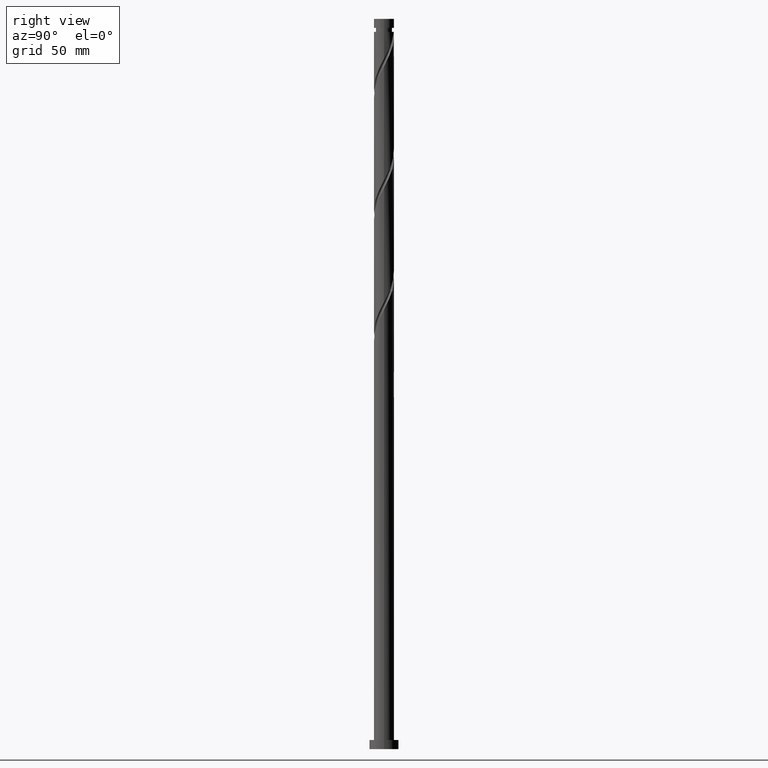
[diagram: clean part render]
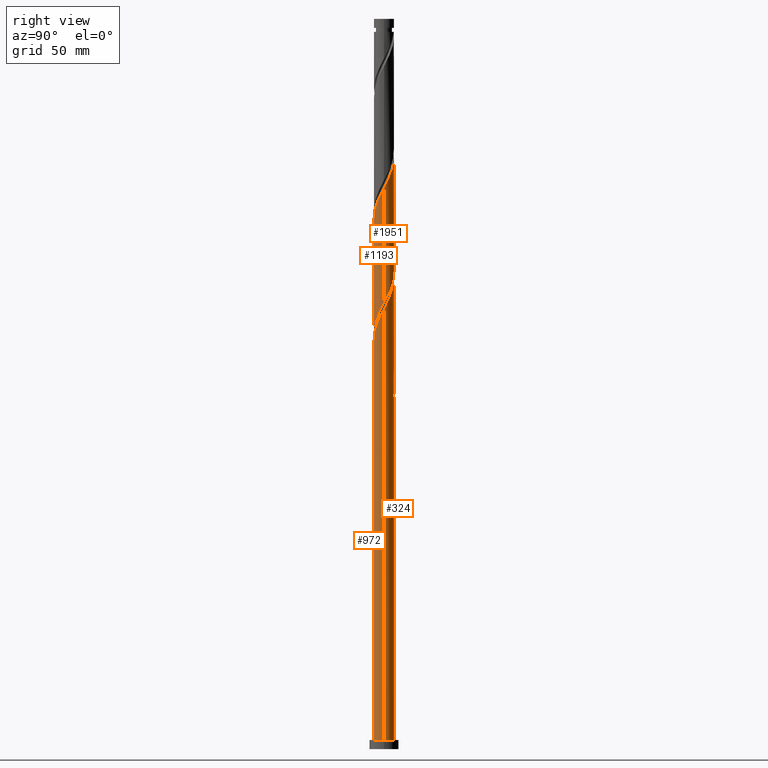
[diagram: same view with one multi-face feature highlighted, each face labeled with its STEP entity id]
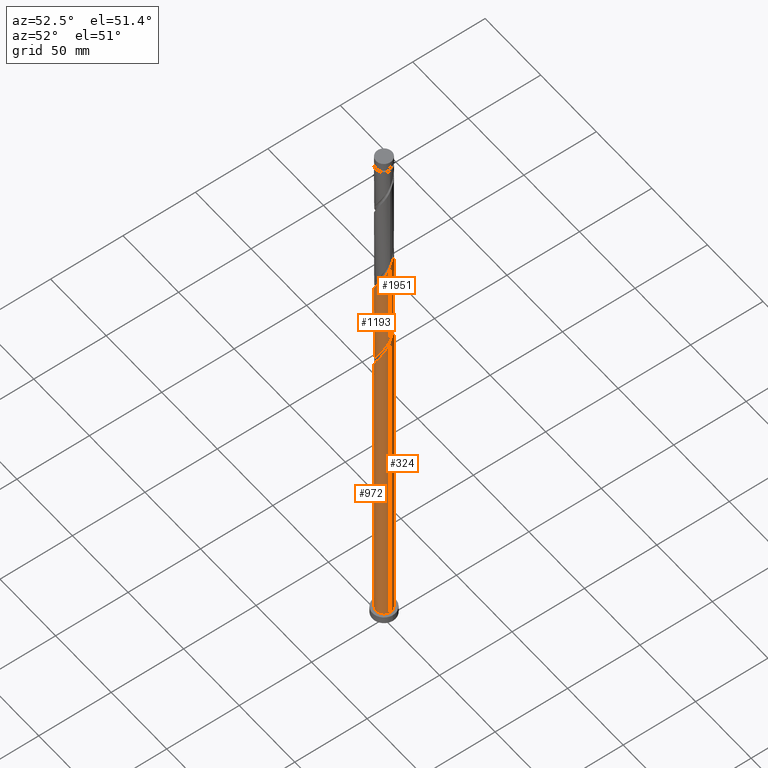
[diagram: same view with one multi-face feature highlighted, each face labeled with its STEP entity id]
A machine part, right view. The highlighted faces form ONE feature: a constant-radius fillet chain: 4 tangent blend faces with common blend radius 5.5 mm. The faces share edges in the B-rep.
A second angle (auxiliary view) of the same feature is appended — it is thin or edge-on in the first view.
Their STEP definitions:
[1] entity #1951 (Cylinder):
#13 = VECTOR ( 'NONE', #247, 1000.000000000000000 ) ;
#27 = CARTESIAN_POINT ( 'NONE',  ( -5.500000000000007994, 6.397921800044681190E-15, 340.7215994895588551 ) ) ;
#101 = CARTESIAN_POINT ( 'NONE',  ( 4.053620430246145823, 3.717278763758650406, 252.8470427330803432 ) ) ;
#104 = CARTESIAN_POINT ( 'NONE',  ( -1.094486180817285659, 5.390000000000008562, 326.1803760664137144 ) ) ;
#115 = CARTESIAN_POINT ( 'NONE',  ( -1.660998008899283507, 5.274964866956355358, 327.2914871775246866 ) ) ;
#123 = CARTESIAN_POINT ( 'NONE',  ( -1.192447627240333041, 5.369177651772091941, 263.9581538441914859 ) ) ;
#133 = CARTESIAN_POINT ( 'NONE',  ( -4.737904811144821871, 2.793252226443368791, 335.0692649553025717 ) ) ;
#149 = CARTESIAN_POINT ( 'NONE',  ( -5.500000000000000888, -7.623691864539277123E-15, 278.3058193099351456 ) ) ;
#178 = DIRECTION ( 'NONE',  ( -0.000000000000000000, -0.000000000000000000, -1.000000000000000000 ) ) ;
#232 = DIRECTION ( 'NONE',  ( -0.000000000000000000, -0.000000000000000000, -1.000000000000000000 ) ) ;
#239 = VERTEX_POINT ( 'NONE', #373 ) ;
#247 = DIRECTION ( 'NONE',  ( -0.000000000000000000, -0.000000000000000000, -1.000000000000000000 ) ) ;
#254 = CARTESIAN_POINT ( 'NONE',  ( 1.756770938335405763, 5.243846355816634386, 320.6248205108581715 ) ) ;
#264 = CARTESIAN_POINT ( 'NONE',  ( 5.246068057486485969, 1.651898888013441535, 310.6248205108581715 ) ) ;
#266 = ORIENTED_EDGE ( 'NONE', *, *, #1725, .F. ) ;
#282 = CARTESIAN_POINT ( 'NONE',  ( -4.503513097574002089, 3.209756768537233018, 271.7359316219693142 ) ) ;
#283 = CARTESIAN_POINT ( 'NONE',  ( 3.737754574404964725, 4.075948904820327456, 316.1803760664137144 ) ) ;
#329 = CARTESIAN_POINT ( 'NONE',  ( 5.500000000000000000, 5.202048566391506910E-15, 244.9724859766018881 ) ) ;
#343 = CARTESIAN_POINT ( 'NONE',  ( -5.031487450309301224, 2.295278364506422975, 336.1803760664136007 ) ) ;
#373 = CARTESIAN_POINT ( 'NONE',  ( 5.500000000000009770, 3.468032377594313485E-15, 307.3882661562255407 ) ) ;
#386 = VERTEX_POINT ( 'NONE', #1458 ) ;
#411 = CARTESIAN_POINT ( 'NONE',  ( -4.120633835989480964, 3.642852836678778239, 270.6248205108581146 ) ) ;
#414 = CARTESIAN_POINT ( 'NONE',  ( 0.000000000000000000, 0.000000000000000000, 400.0000000000000000 ) ) ;
#443 = CARTESIAN_POINT ( 'NONE',  ( -0.05007498170498810713, 5.499772040385605187, 261.7359316219692573 ) ) ;
#444 = CARTESIAN_POINT ( 'NONE',  ( -3.662918688511957122, 4.143331439137003080, 331.7359316219692573 ) ) ;
#459 =( BOUNDED_CURVE ( )  B_SPLINE_CURVE ( 2, ( #1829, #1032, #1842, #1958, #264, #1810, #586, #1052, #1672, #283, #903, #1490, #1075, #254, #873, #1482, #1042, #895, #104, #115, #1358, #596, #1205, #444, #914, #1519, #133, #343, #1866, #937, #2008, #1886, #27 ),
 .UNSPECIFIED., .F., .T. ) 
 B_SPLINE_CURVE_WITH_KNOTS ( ( 3, 2, 2, 2, 2, 2, 2, 2, 2, 2, 2, 2, 2, 2, 2, 2, 3 ),
 ( 0.4295286012773114614, 0.4333333333333333481, 0.4416666666666666519, 0.4499999999999999556, 0.4583333333333333703, 0.4666666666666666741, 0.4749999999999999778, 0.4833333333333332815, 0.4916666666666666963, 0.5000000000000000000, 0.5083333333333333037, 0.5166666666666666075, 0.5250000000000000222, 0.5333333333333333259, 0.5416666666666667407, 0.5500000000000000444, 0.5545286012773112949 ),
 .UNSPECIFIED. ) 
 CURVE ( )  GEOMETRIC_REPRESENTATION_ITEM ( )  RATIONAL_B_SPLINE_CURVE ( ( 0.9066196499552308108, 0.9068171577856434240, 0.9090909090909424783, 0.9041108139711906411, 0.9090909090909424783, 0.9041108139711906411, 0.9090909090909424783, 0.9041108139711906411, 0.9090909090909424783, 0.9041108139711906411, 0.9090909090909424783, 0.9041108139711906411, 0.9090909090909424783, 0.9041108139711906411, 0.9090909090909424783, 0.9041108139711906411, 0.9090909090909424783, 0.9041108139711906411, 0.9090909090909424783, 0.9041108139711906411, 0.9090909090909424783, 0.9041108139711906411, 0.9090909090909424783, 0.9041108139711906411, 0.9090909090909424783, 0.9041108139711906411, 0.9090909090909424783, 0.9041108139711906411, 0.9090909090909424783, 0.9041108139711906411, 0.9090909090909424783, 0.9063845652764896954, 0.9066196499552308108 ) ) 
 REPRESENTATION_ITEM ( '' )  );
#513 = EDGE_CURVE ( 'NONE', #386, #1323, #792, .T. ) ;
#574 = CARTESIAN_POINT ( 'NONE',  ( 4.737904811144816541, 2.793252226443360797, 250.6248205108581146 ) ) ;
#586 = CARTESIAN_POINT ( 'NONE',  ( 4.787979792849812455, 2.706519813942244390, 312.8470427330802863 ) ) ;
#595 = CARTESIAN_POINT ( 'NONE',  ( -3.737754574404959396, 4.075948904820323904, 269.5137093997470288 ) ) ;
#596 = CARTESIAN_POINT ( 'NONE',  ( -2.721428081721636083, 4.814353324093296749, 329.5137093997470288 ) ) ;
#602 = CARTESIAN_POINT ( 'NONE',  ( 5.215120016806767289, 1.747147163321217445, 248.4025982886358861 ) ) ;
#685 = CARTESIAN_POINT ( 'NONE',  ( 2.721428081721633863, 4.814353324093288755, 256.1803760664137712 ) ) ;
#688 = EDGE_CURVE ( 'NONE', #1323, #699, #1566, .T. ) ;
#699 = VERTEX_POINT ( 'NONE', #329 ) ;
#726 = CARTESIAN_POINT ( 'NONE',  ( -2.282704589466713951, 5.003924435603280152, 266.1803760664136007 ) ) ;
#757 = CARTESIAN_POINT ( 'NONE',  ( -0.6281243161452666479, 5.494508947727561043, 262.8470427330804569 ) ) ;
#781 = CARTESIAN_POINT ( 'NONE',  ( 5.500000000000000000, 5.202048566391506910E-15, 244.9724859766018881 ) ) ;
#792 = LINE ( 'NONE', #1559, #1085 ) ;
#801 = CARTESIAN_POINT ( 'NONE',  ( 5.398752583304238684, 1.199015962136021907, 247.2914871775248571 ) ) ;
#846 = CARTESIAN_POINT ( 'NONE',  ( 3.192173385116795714, 4.478842381615138812, 255.0692649553025433 ) ) ;
#873 = CARTESIAN_POINT ( 'NONE',  ( 1.192447627240339925, 5.369177651772102600, 321.7359316219692573 ) ) ;
#894 = CARTESIAN_POINT ( 'NONE',  ( -5.419689626847354447, 1.100514916679633748, 276.1803760664136007 ) ) ;
#895 = CARTESIAN_POINT ( 'NONE',  ( -0.5279743527352852572, 5.505035133043659989, 325.0692649553026286 ) ) ;
#903 = CARTESIAN_POINT ( 'NONE',  ( 3.273196407501500982, 4.419975710105129352, 317.2914871775248002 ) ) ;
#914 = CARTESIAN_POINT ( 'NONE',  ( -4.053620430246150264, 3.717278763758658400, 332.8470427330802863 ) ) ;
#937 = CARTESIAN_POINT ( 'NONE',  ( -5.398752583304249342, 1.199015962136027902, 338.4025982886358861 ) ) ;
#998 = CARTESIAN_POINT ( 'NONE',  ( 1.094486180817287657, 5.390000000000000568, 259.5137093997470288 ) ) ;
#1031 = CARTESIAN_POINT ( 'NONE',  ( -2.808638240598027913, 4.764002515389932135, 267.2914871775248571 ) ) ;
#1032 = CARTESIAN_POINT ( 'NONE',  ( 5.500000000000008882, 0.2631419960771188560, 307.8968146817895786 ) ) ;
#1038 = CARTESIAN_POINT ( 'NONE',  ( 5.031487450309294118, 2.295278364506417645, 249.5137093997470004 ) ) ;
#1042 = CARTESIAN_POINT ( 'NONE',  ( 0.05007498170499220108, 5.499772040385614957, 323.9581538441915427 ) ) ;
#1051 = CARTESIAN_POINT ( 'NONE',  ( -4.787979792849804461, 2.706519813942241282, 272.8470427330804000 ) ) ;
#1052 = CARTESIAN_POINT ( 'NONE',  ( 4.503513097574011859, 3.209756768537233906, 313.9581538441914290 ) ) ;
#1062 = CARTESIAN_POINT ( 'NONE',  ( -5.474877974583507445, 0.5250820539881385640, 277.2914871775248571 ) ) ;
#1075 = CARTESIAN_POINT ( 'NONE',  ( 2.282704589466719280, 5.003924435603286369, 319.5137093997470288 ) ) ;
#1085 = VECTOR ( 'NONE', #178, 1000.000000000000000 ) ;
#1088 = AXIS2_PLACEMENT_3D ( 'NONE', #414, #232, #1453 ) ;
#1119 = LINE ( 'NONE', #1961, #13 ) ;
#1127 = CARTESIAN_POINT ( 'NONE',  ( 2.191213045310460128, 5.044659095524817616, 257.2914871775248002 ) ) ;
#1196 = CARTESIAN_POINT ( 'NONE',  ( -5.500000000000002665, 0.2631419960771197442, 277.7972707843711646 ) ) ;
#1205 = CARTESIAN_POINT ( 'NONE',  ( -3.192173385116796602, 4.478842381615148582, 330.6248205108580578 ) ) ;
#1222 = CARTESIAN_POINT ( 'NONE',  ( 5.500000000000001776, 0.3133555559553803382, 245.5780772859864669 ) ) ;
#1240 = ORIENTED_EDGE ( 'NONE', *, *, #1913, .T. ) ;
#1323 = VERTEX_POINT ( 'NONE', #149 ) ;
#1348 = CARTESIAN_POINT ( 'NONE',  ( -5.500000000000000888, -7.623691864539277123E-15, 278.3058193099351456 ) ) ;
#1357 = CARTESIAN_POINT ( 'NONE',  ( -3.273196407501492100, 4.419975710105126687, 268.4025982886358861 ) ) ;
#1358 = CARTESIAN_POINT ( 'NONE',  ( -2.191213045310459240, 5.044659095524825609, 328.4025982886358292 ) ) ;
#1370 = EDGE_LOOP ( 'NONE', ( #266, #1240, #1955, #2006 ) ) ;
#1453 = DIRECTION ( 'NONE',  ( -1.000000000000000000, 0.000000000000000000, 0.000000000000000000 ) ) ;
#1458 = CARTESIAN_POINT ( 'NONE',  ( -5.500000000000007994, 6.397921800044680401E-15, 340.7215994895588551 ) ) ;
#1478 = CARTESIAN_POINT ( 'NONE',  ( 4.444322171980340741, 3.291226088380304393, 251.7359316219692857 ) ) ;
#1482 = CARTESIAN_POINT ( 'NONE',  ( 0.6281243161452697565, 5.494508947727569037, 322.8470427330804569 ) ) ;
#1490 = CARTESIAN_POINT ( 'NONE',  ( 2.808638240598036351, 4.764002515389936576, 318.4025982886359998 ) ) ;
#1510 = CARTESIAN_POINT ( 'NONE',  ( -1.756770938335399102, 5.243846355816629945, 265.0692649553025717 ) ) ;
#1519 = CARTESIAN_POINT ( 'NONE',  ( -4.444322171980342517, 3.291226088380315051, 333.9581538441915995 ) ) ;
#1559 = CARTESIAN_POINT ( 'NONE',  ( -5.500000000000000000, 0.000000000000000000, 400.0000000000000000 ) ) ;
#1566 =( BOUNDED_CURVE ( )  B_SPLINE_CURVE ( 2, ( #1348, #1196, #1062, #894, #1641, #1671, #1051, #282, #411, #595, #1357, #1031, #726, #1510, #123, #757, #443, #1596, #998, #1754, #1127, #685, #846, #1813, #101, #1478, #574, #1038, #602, #801, #1700, #1222, #781 ),
 .UNSPECIFIED., .F., .T. ) 
 B_SPLINE_CURVE_WITH_KNOTS ( ( 3, 2, 2, 2, 2, 2, 2, 2, 2, 2, 2, 2, 2, 2, 2, 2, 3 ),
 ( 0.6795286012773114059, 0.6833333333333333481, 0.6916666666666666519, 0.6999999999999999556, 0.7083333333333333703, 0.7166666666666666741, 0.7249999999999999778, 0.7333333333333332815, 0.7416666666666666963, 0.7500000000000000000, 0.7583333333333333037, 0.7666666666666667185, 0.7750000000000000222, 0.7833333333333333259, 0.7916666666666666297, 0.8000000000000000444, 0.8045286012773114059 ),
 .UNSPECIFIED. ) 
 CURVE ( )  GEOMETRIC_REPRESENTATION_ITEM ( )  RATIONAL_B_SPLINE_CURVE ( ( 0.9066196499552243715, 0.9068171577856372068, 0.9090909090909361501, 0.9041108139711843128, 0.9090909090909361501, 0.9041108139711843128, 0.9090909090909361501, 0.9041108139711843128, 0.9090909090909361501, 0.9041108139711843128, 0.9090909090909361501, 0.9041108139711843128, 0.9090909090909361501, 0.9041108139711843128, 0.9090909090909361501, 0.9041108139711843128, 0.9090909090909361501, 0.9041108139711843128, 0.9090909090909361501, 0.9041108139711843128, 0.9090909090909361501, 0.9041108139711843128, 0.9090909090909361501, 0.9041108139711843128, 0.9090909090909361501, 0.9041108139711843128, 0.9090909090909361501, 0.9041108139711843128, 0.9090909090909361501, 0.9041108139711843128, 0.9090909090909361501, 0.9063845652764832561, 0.9066196499552243715 ) ) 
 REPRESENTATION_ITEM ( '' )  );
#1596 = CARTESIAN_POINT ( 'NONE',  ( 0.5279743527352899202, 5.505035133043651996, 260.6248205108582283 ) ) ;
#1634 = CYLINDRICAL_SURFACE ( 'NONE', #1088, 5.500000000000000000 ) ;
#1641 = CARTESIAN_POINT ( 'NONE',  ( -5.246068057486477976, 1.651898888013442424, 275.0692649553025717 ) ) ;
#1671 = CARTESIAN_POINT ( 'NONE',  ( -5.072446488125604169, 2.203282859347252209, 273.9581538441915995 ) ) ;
#1672 = CARTESIAN_POINT ( 'NONE',  ( 4.120633835989489846, 3.642852836678779127, 315.0692649553025717 ) ) ;
#1700 = CARTESIAN_POINT ( 'NONE',  ( 5.464409452811949564, 0.6246833854196899294, 246.1803760664136860 ) ) ;
#1725 = EDGE_CURVE ( 'NONE', #239, #386, #459, .T. ) ;
#1735 = FACE_OUTER_BOUND ( 'NONE', #1370, .T. ) ;
#1754 = CARTESIAN_POINT ( 'NONE',  ( 1.660998008899287059, 5.274964866956348253, 258.4025982886359429 ) ) ;
#1810 = CARTESIAN_POINT ( 'NONE',  ( 5.072446488125613939, 2.203282859347249545, 311.7359316219692005 ) ) ;
#1813 = CARTESIAN_POINT ( 'NONE',  ( 3.662918688511955789, 4.143331439136995087, 253.9581538441915143 ) ) ;
#1829 = CARTESIAN_POINT ( 'NONE',  ( 5.500000000000010658, 3.468032377594313485E-15, 307.3882661562255976 ) ) ;
#1842 = CARTESIAN_POINT ( 'NONE',  ( 5.474877974583515439, 0.5250820539881335680, 308.4025982886359429 ) ) ;
#1866 = CARTESIAN_POINT ( 'NONE',  ( -5.215120016806774395, 1.747147163321225660, 337.2914871775248002 ) ) ;
#1886 = CARTESIAN_POINT ( 'NONE',  ( -5.500000000000005329, 0.3133555559553924397, 340.1160081801743331 ) ) ;
#1913 = EDGE_CURVE ( 'NONE', #239, #699, #1119, .T. ) ;
#1951 = ADVANCED_FACE ( 'NONE', ( #1735 ), #1634, .T. ) ;
#1955 = ORIENTED_EDGE ( 'NONE', *, *, #688, .F. ) ;
#1958 = CARTESIAN_POINT ( 'NONE',  ( 5.419689626847361552, 1.100514916679632860, 309.5137093997470856 ) ) ;
#1961 = CARTESIAN_POINT ( 'NONE',  ( 5.500000000000000000, 6.735557395310441037E-16, 400.0000000000000000 ) ) ;
#2006 = ORIENTED_EDGE ( 'NONE', *, *, #513, .F. ) ;
#2008 = CARTESIAN_POINT ( 'NONE',  ( -5.464409452811957557, 0.6246833854196927049, 339.5137093997470856 ) ) ;
[2] entity #1193 (Cylinder):
#13 = VECTOR ( 'NONE', #247, 1000.000000000000000 ) ;
#22 = VERTEX_POINT ( 'NONE', #651 ) ;
#40 = ORIENTED_EDGE ( 'NONE', *, *, #1582, .F. ) ;
#49 = CARTESIAN_POINT ( 'NONE',  ( -1.756770938335404875, -5.243846355816634386, 287.2914871775249139 ) ) ;
#58 = CARTESIAN_POINT ( 'NONE',  ( 3.662918688511956677, -4.143331439137004857, 298.4025982886358292 ) ) ;
#87 = CARTESIAN_POINT ( 'NONE',  ( 5.215120016806774395, -1.747147163321227881, 303.9581538441914290 ) ) ;
#89 = CARTESIAN_POINT ( 'NONE',  ( 3.273196407501492100, -4.419975710105127575, 235.0692649553026286 ) ) ;
#124 = CARTESIAN_POINT ( 'NONE',  ( -5.500000000000000000, 0.000000000000000000, 400.0000000000000000 ) ) ;
#141 = CARTESIAN_POINT ( 'NONE',  ( 5.246068057486477976, -1.651898888013445976, 241.7359316219692289 ) ) ;
#212 = CARTESIAN_POINT ( 'NONE',  ( 3.192173385116794826, -4.478842381615150359, 297.2914871775247434 ) ) ;
#224 = CARTESIAN_POINT ( 'NONE',  ( -1.094486180817286769, -5.390000000000000568, 226.1803760664136576 ) ) ;
#230 = CARTESIAN_POINT ( 'NONE',  ( -1.192447627240337038, -5.369177651772103488, 288.4025982886357724 ) ) ;
#239 = VERTEX_POINT ( 'NONE', #373 ) ;
#242 = VERTEX_POINT ( 'NONE', #1741 ) ;
#247 = DIRECTION ( 'NONE',  ( -0.000000000000000000, -0.000000000000000000, -1.000000000000000000 ) ) ;
#256 = CARTESIAN_POINT ( 'NONE',  ( -3.662918688511955789, -4.143331439136995975, 220.6248205108581431 ) ) ;
#329 = CARTESIAN_POINT ( 'NONE',  ( 5.500000000000000000, 5.202048566391506910E-15, 244.9724859766018881 ) ) ;
#333 = EDGE_LOOP ( 'NONE', ( #464, #40, #474, #565 ) ) ;
#373 = CARTESIAN_POINT ( 'NONE',  ( 5.500000000000009770, 3.468032377594313485E-15, 307.3882661562255407 ) ) ;
#376 = CARTESIAN_POINT ( 'NONE',  ( -4.737904811144815653, -2.793252226443360797, 217.2914871775248002 ) ) ;
#384 = CARTESIAN_POINT ( 'NONE',  ( -5.215120016806765513, -1.747147163321219887, 215.0692649553025433 ) ) ;
#392 = CARTESIAN_POINT ( 'NONE',  ( 5.500000000000010658, 3.468032377594313485E-15, 307.3882661562255976 ) ) ;
#394 = CARTESIAN_POINT ( 'NONE',  ( -2.191213045310459240, -5.044659095524817616, 223.9581538441914290 ) ) ;
#406 = CARTESIAN_POINT ( 'NONE',  ( 1.192447627240330821, -5.369177651772093718, 230.6248205108581431 ) ) ;
#422 = LINE ( 'NONE', #124, #1241 ) ;
#464 = ORIENTED_EDGE ( 'NONE', *, *, #1913, .F. ) ;
#474 = ORIENTED_EDGE ( 'NONE', *, *, #1664, .T. ) ;
#503 = CARTESIAN_POINT ( 'NONE',  ( -5.031487450309294118, -2.295278364506418534, 216.1803760664136860 ) ) ;
#504 = AXIS2_PLACEMENT_3D ( 'NONE', #1018, #1627, #1302 ) ;
#520 = CARTESIAN_POINT ( 'NONE',  ( -5.500000000000007994, -0.2631419960771174682, 274.5634813484563210 ) ) ;
#529 = CARTESIAN_POINT ( 'NONE',  ( -5.419689626847361552, -1.100514916679633082, 276.1803760664136576 ) ) ;
#539 = CARTESIAN_POINT ( 'NONE',  ( -5.246068057486485969, -1.651898888013443312, 277.2914871775248571 ) ) ;
#541 = CARTESIAN_POINT ( 'NONE',  ( -2.721428081721632530, -4.814353324093288755, 222.8470427330804000 ) ) ;
#548 = CARTESIAN_POINT ( 'NONE',  ( 5.464409452811957557, -0.6246833854196932601, 306.1803760664137712 ) ) ;
#559 = CARTESIAN_POINT ( 'NONE',  ( 4.787979792849804461, -2.706519813942242170, 239.5137093997470004 ) ) ;
#565 = ORIENTED_EDGE ( 'NONE', *, *, #1852, .F. ) ;
#651 = CARTESIAN_POINT ( 'NONE',  ( -5.500000000000007994, -5.411326382280783221E-15, 274.0549328228922263 ) ) ;
#682 = CARTESIAN_POINT ( 'NONE',  ( 4.053620430246150264, -3.717278763758658844, 299.5137093997470856 ) ) ;
#697 = FACE_OUTER_BOUND ( 'NONE', #333, .T. ) ;
#699 = VERTEX_POINT ( 'NONE', #329 ) ;
#708 = CARTESIAN_POINT ( 'NONE',  ( 0.6281243161452659818, -5.494508947727561932, 229.5137093997470572 ) ) ;
#836 = CARTESIAN_POINT ( 'NONE',  ( -3.737754574404964725, -4.075948904820328345, 282.8470427330803432 ) ) ;
#853 = CARTESIAN_POINT ( 'NONE',  ( -0.6281243161452685353, -5.494508947727569037, 289.5137093997469719 ) ) ;
#984 = CARTESIAN_POINT ( 'NONE',  ( 0.5279743527352882548, -5.505035133043659989, 291.7359316219693142 ) ) ;
#997 = CARTESIAN_POINT ( 'NONE',  ( -4.053620430246145823, -3.717278763758650406, 219.5137093997470288 ) ) ;
#1005 =( BOUNDED_CURVE ( )  B_SPLINE_CURVE ( 2, ( #1255, #1071, #1678, #1524, #141, #1008, #559, #1181, #1942, #1475, #89, #1329, #1160, #1607, #406, #708, #1300, #1950, #224, #1168, #394, #541, #1319, #256, #997, #1644, #376, #503, #384, #1784, #1016, #1484, #1626 ),
 .UNSPECIFIED., .F., .T. ) 
 B_SPLINE_CURVE_WITH_KNOTS ( ( 3, 2, 2, 2, 2, 2, 2, 2, 2, 2, 2, 2, 2, 2, 2, 2, 3 ),
 ( 0.8045286012773114059, 0.8083333333333333481, 0.8166666666666666519, 0.8249999999999999556, 0.8333333333333333703, 0.8416666666666666741, 0.8499999999999999778, 0.8583333333333332815, 0.8666666666666666963, 0.8750000000000000000, 0.8833333333333333037, 0.8916666666666667185, 0.9000000000000000222, 0.9083333333333333259, 0.9166666666666666297, 0.9250000000000000444, 0.9295286012773115170 ),
 .UNSPECIFIED. ) 
 CURVE ( )  GEOMETRIC_REPRESENTATION_ITEM ( )  RATIONAL_B_SPLINE_CURVE ( ( 0.9066196499552243715, 0.9068171577856372068, 0.9090909090909361501, 0.9041108139711843128, 0.9090909090909361501, 0.9041108139711843128, 0.9090909090909361501, 0.9041108139711843128, 0.9090909090909361501, 0.9041108139711843128, 0.9090909090909361501, 0.9041108139711843128, 0.9090909090909361501, 0.9041108139711843128, 0.9090909090909361501, 0.9041108139711843128, 0.9090909090909361501, 0.9041108139711843128, 0.9090909090909361501, 0.9041108139711843128, 0.9090909090909361501, 0.9041108139711843128, 0.9090909090909361501, 0.9041108139711843128, 0.9090909090909361501, 0.9041108139711843128, 0.9090909090909361501, 0.9041108139711843128, 0.9090909090909361501, 0.9041108139711843128, 0.9090909090909361501, 0.9063845652764832561, 0.9066196499552243715 ) ) 
 REPRESENTATION_ITEM ( '' )  );
#1008 = CARTESIAN_POINT ( 'NONE',  ( 5.072446488125604169, -2.203282859347254874, 240.6248205108581431 ) ) ;
#1016 = CARTESIAN_POINT ( 'NONE',  ( -5.464409452811949564, -0.6246833854196904845, 212.8470427330803716 ) ) ;
#1018 = CARTESIAN_POINT ( 'NONE',  ( 0.000000000000000000, 0.000000000000000000, 400.0000000000000000 ) ) ;
#1024 = CARTESIAN_POINT ( 'NONE',  ( -5.500000000000007994, -5.411326382280783221E-15, 274.0549328228922263 ) ) ;
#1071 = CARTESIAN_POINT ( 'NONE',  ( 5.500000000000000888, -0.2631419960771224087, 244.4639374510378218 ) ) ;
#1083 =( BOUNDED_CURVE ( )  B_SPLINE_CURVE ( 2, ( #1024, #520, #1279, #529, #539, #1149, #1623, #1773, #1615, #836, #1436, #1166, #1948, #49, #230, #853, #1133, #984, #1309, #1593, #1443, #1158, #212, #58, #682, #1287, #1918, #1462, #87, #1141, #548, #1782, #392 ),
 .UNSPECIFIED., .F., .T. ) 
 B_SPLINE_CURVE_WITH_KNOTS ( ( 3, 2, 2, 2, 2, 2, 2, 2, 2, 2, 2, 2, 2, 2, 2, 2, 3 ),
 ( 0.3045286012773114059, 0.3083333333333333481, 0.3166666666666666519, 0.3249999999999999556, 0.3333333333333333703, 0.3416666666666666741, 0.3499999999999999778, 0.3583333333333332815, 0.3666666666666666963, 0.3750000000000000000, 0.3833333333333333037, 0.3916666666666667185, 0.4000000000000000222, 0.4083333333333333259, 0.4166666666666666297, 0.4250000000000000444, 0.4295286012773114614 ),
 .UNSPECIFIED. ) 
 CURVE ( )  GEOMETRIC_REPRESENTATION_ITEM ( )  RATIONAL_B_SPLINE_CURVE ( ( 0.9066196499552308108, 0.9068171577856434240, 0.9090909090909424783, 0.9041108139711906411, 0.9090909090909424783, 0.9041108139711906411, 0.9090909090909424783, 0.9041108139711906411, 0.9090909090909424783, 0.9041108139711906411, 0.9090909090909424783, 0.9041108139711906411, 0.9090909090909424783, 0.9041108139711906411, 0.9090909090909424783, 0.9041108139711906411, 0.9090909090909424783, 0.9041108139711906411, 0.9090909090909424783, 0.9041108139711906411, 0.9090909090909424783, 0.9041108139711906411, 0.9090909090909424783, 0.9041108139711906411, 0.9090909090909424783, 0.9041108139711906411, 0.9090909090909424783, 0.9041108139711906411, 0.9090909090909424783, 0.9041108139711906411, 0.9090909090909424783, 0.9063845652764896954, 0.9066196499552308108 ) ) 
 REPRESENTATION_ITEM ( '' )  );
#1119 = LINE ( 'NONE', #1961, #13 ) ;
#1133 = CARTESIAN_POINT ( 'NONE',  ( -0.05007498170499134760, -5.499772040385614957, 290.6248205108581146 ) ) ;
#1135 = CYLINDRICAL_SURFACE ( 'NONE', #504, 5.500000000000000000 ) ;
#1141 = CARTESIAN_POINT ( 'NONE',  ( 5.398752583304248454, -1.199015962136031455, 305.0692649553025717 ) ) ;
#1149 = CARTESIAN_POINT ( 'NONE',  ( -5.072446488125611275, -2.203282859347252653, 278.4025982886359429 ) ) ;
#1158 = CARTESIAN_POINT ( 'NONE',  ( 2.721428081721635195, -4.814353324093297637, 296.1803760664137144 ) ) ;
#1160 = CARTESIAN_POINT ( 'NONE',  ( 2.282704589466713507, -5.003924435603280152, 232.8470427330803432 ) ) ;
#1166 = CARTESIAN_POINT ( 'NONE',  ( -2.808638240598034130, -4.764002515389937464, 285.0692649553026286 ) ) ;
#1168 = CARTESIAN_POINT ( 'NONE',  ( -1.660998008899283063, -5.274964866956348253, 225.0692649553026286 ) ) ;
#1181 = CARTESIAN_POINT ( 'NONE',  ( 4.503513097574001200, -3.209756768537236127, 238.4025982886359145 ) ) ;
#1193 = ADVANCED_FACE ( 'NONE', ( #697 ), #1135, .T. ) ;
#1241 = VECTOR ( 'NONE', #1650, 1000.000000000000000 ) ;
#1255 = CARTESIAN_POINT ( 'NONE',  ( 5.500000000000000000, 5.202048566391506910E-15, 244.9724859766018881 ) ) ;
#1279 = CARTESIAN_POINT ( 'NONE',  ( -5.474877974583513662, -0.5250820539881364546, 275.0692649553026286 ) ) ;
#1287 = CARTESIAN_POINT ( 'NONE',  ( 4.444322171980340741, -3.291226088380315939, 300.6248205108581146 ) ) ;
#1300 = CARTESIAN_POINT ( 'NONE',  ( 0.05007498170498684426, -5.499772040385605187, 228.4025982886358861 ) ) ;
#1302 = DIRECTION ( 'NONE',  ( -1.000000000000000000, 0.000000000000000000, 0.000000000000000000 ) ) ;
#1309 = CARTESIAN_POINT ( 'NONE',  ( 1.094486180817286103, -5.390000000000008562, 292.8470427330803432 ) ) ;
#1319 = CARTESIAN_POINT ( 'NONE',  ( -3.192173385116793050, -4.478842381615140589, 221.7359316219692289 ) ) ;
#1329 = CARTESIAN_POINT ( 'NONE',  ( 2.808638240598027025, -4.764002515389932135, 233.9581538441915143 ) ) ;
#1436 = CARTESIAN_POINT ( 'NONE',  ( -3.273196407501500538, -4.419975710105131128, 283.9581538441914290 ) ) ;
#1443 = CARTESIAN_POINT ( 'NONE',  ( 2.191213045310457908, -5.044659095524825609, 295.0692649553026286 ) ) ;
#1462 = CARTESIAN_POINT ( 'NONE',  ( 5.031487450309300336, -2.295278364506422975, 302.8470427330804569 ) ) ;
#1475 = CARTESIAN_POINT ( 'NONE',  ( 3.737754574404958507, -4.075948904820323904, 236.1803760664137712 ) ) ;
#1484 = CARTESIAN_POINT ( 'NONE',  ( -5.500000000000001776, -0.3133555559553747316, 212.2447439526530957 ) ) ;
#1524 = CARTESIAN_POINT ( 'NONE',  ( 5.419689626847354447, -1.100514916679634414, 242.8470427330804569 ) ) ;
#1582 = EDGE_CURVE ( 'NONE', #22, #239, #1083, .T. ) ;
#1593 = CARTESIAN_POINT ( 'NONE',  ( 1.660998008899282175, -5.274964866956356246, 293.9581538441915427 ) ) ;
#1607 = CARTESIAN_POINT ( 'NONE',  ( 1.756770938335398213, -5.243846355816629945, 231.7359316219692573 ) ) ;
#1615 = CARTESIAN_POINT ( 'NONE',  ( -4.120633835989488070, -3.642852836678781348, 281.7359316219692005 ) ) ;
#1623 = CARTESIAN_POINT ( 'NONE',  ( -4.787979792849812455, -2.706519813942244834, 279.5137093997470856 ) ) ;
#1626 = CARTESIAN_POINT ( 'NONE',  ( -5.500000000000000888, 7.743279187904599284E-15, 211.6391526432685168 ) ) ;
#1627 = DIRECTION ( 'NONE',  ( -0.000000000000000000, -0.000000000000000000, -1.000000000000000000 ) ) ;
#1644 = CARTESIAN_POINT ( 'NONE',  ( -4.444322171980338965, -3.291226088380308834, 218.4025982886359429 ) ) ;
#1650 = DIRECTION ( 'NONE',  ( -0.000000000000000000, -0.000000000000000000, -1.000000000000000000 ) ) ;
#1664 = EDGE_CURVE ( 'NONE', #22, #242, #422, .T. ) ;
#1678 = CARTESIAN_POINT ( 'NONE',  ( 5.474877974583506557, -0.5250820539881405624, 243.9581538441914859 ) ) ;
#1741 = CARTESIAN_POINT ( 'NONE',  ( -5.500000000000000888, 7.743279187904599284E-15, 211.6391526432685168 ) ) ;
#1773 = CARTESIAN_POINT ( 'NONE',  ( -4.503513097574011859, -3.209756768537235683, 280.6248205108581146 ) ) ;
#1782 = CARTESIAN_POINT ( 'NONE',  ( 5.500000000000007105, -0.3133555559553821701, 306.7826748468409050 ) ) ;
#1784 = CARTESIAN_POINT ( 'NONE',  ( -5.398752583304239572, -1.199015962136023905, 213.9581538441915427 ) ) ;
#1852 = EDGE_CURVE ( 'NONE', #699, #242, #1005, .T. ) ;
#1913 = EDGE_CURVE ( 'NONE', #239, #699, #1119, .T. ) ;
#1918 = CARTESIAN_POINT ( 'NONE',  ( 4.737904811144821871, -2.793252226443370123, 301.7359316219691436 ) ) ;
#1942 = CARTESIAN_POINT ( 'NONE',  ( 4.120633835989479188, -3.642852836678780015, 237.2914871775247718 ) ) ;
#1948 = CARTESIAN_POINT ( 'NONE',  ( -2.282704589466718836, -5.003924435603286369, 286.1803760664136576 ) ) ;
#1950 = CARTESIAN_POINT ( 'NONE',  ( -0.5279743527352924737, -5.505035133043654660, 227.2914871775248002 ) ) ;
#1961 = CARTESIAN_POINT ( 'NONE',  ( 5.500000000000000000, 6.735557395310441037E-16, 400.0000000000000000 ) ) ;
[3] entity #324 (Cylinder):
#22 = VERTEX_POINT ( 'NONE', #651 ) ;
#26 = ORIENTED_EDGE ( 'NONE', *, *, #1103, .F. ) ;
#37 = CYLINDRICAL_SURFACE ( 'NONE', #1654, 5.500000000000000000 ) ;
#54 =( BOUNDED_CURVE ( )  B_SPLINE_CURVE ( 2, ( #838, #531, #1454, #234, #542, #999, #1786, #90, #1445, #1485, #214, #366, #225, #856, #1466, #1320, #81, #709, #1144, #731, #258, #1330, #1152, #551, #61, #1765, #847, #1952, #686, #1312, #396, #1798, #71 ),
 .UNSPECIFIED., .F., .F. ) 
 B_SPLINE_CURVE_WITH_KNOTS ( ( 3, 2, 2, 2, 2, 2, 2, 2, 2, 2, 2, 2, 2, 2, 2, 2, 3 ),
 ( 0.1795286012773113504, 0.1833333333333333481, 0.1916666666666666519, 0.1999999999999999556, 0.2083333333333333703, 0.2166666666666666741, 0.2249999999999999778, 0.2333333333333332815, 0.2416666666666666963, 0.2500000000000000000, 0.2583333333333333037, 0.2666666666666667185, 0.2750000000000000222, 0.2833333333333333259, 0.2916666666666666297, 0.3000000000000000444, 0.3045286012773114059 ),
 .UNSPECIFIED. ) 
 CURVE ( )  GEOMETRIC_REPRESENTATION_ITEM ( )  RATIONAL_B_SPLINE_CURVE ( ( 0.9066196499552308108, 0.9068171577856434240, 0.9090909090909424783, 0.9041108139711906411, 0.9090909090909424783, 0.9041108139711906411, 0.9090909090909424783, 0.9041108139711906411, 0.9090909090909424783, 0.9041108139711906411, 0.9090909090909424783, 0.9041108139711906411, 0.9090909090909424783, 0.9041108139711906411, 0.9090909090909424783, 0.9041108139711906411, 0.9090909090909424783, 0.9041108139711906411, 0.9090909090909424783, 0.9041108139711906411, 0.9090909090909424783, 0.9041108139711906411, 0.9090909090909424783, 0.9041108139711906411, 0.9090909090909424783, 0.9041108139711906411, 0.9090909090909424783, 0.9041108139711906411, 0.9090909090909424783, 0.9041108139711906411, 0.9090909090909424783, 0.9063845652764896954, 0.9066196499552308108 ) ) 
 REPRESENTATION_ITEM ( '' )  );
#61 = CARTESIAN_POINT ( 'NONE',  ( -4.053620430246150264, 3.717278763758658400, 266.1803760664136576 ) ) ;
#67 = CARTESIAN_POINT ( 'NONE',  ( -1.756770938335399102, 5.243846355816629945, 198.4025982886359429 ) ) ;
#71 = CARTESIAN_POINT ( 'NONE',  ( -5.500000000000007994, -5.411326382280783221E-15, 274.0549328228922263 ) ) ;
#76 = DIRECTION ( 'NONE',  ( -1.000000000000000000, 0.000000000000000000, 0.000000000000000000 ) ) ;
#81 = CARTESIAN_POINT ( 'NONE',  ( 0.05007498170499220108, 5.499772040385614957, 257.2914871775248002 ) ) ;
#84 = EDGE_CURVE ( 'NONE', #1233, #1778, #1140, .T. ) ;
#90 = CARTESIAN_POINT ( 'NONE',  ( 4.503513097574011859, 3.209756768537233906, 247.2914871775248571 ) ) ;
#124 = CARTESIAN_POINT ( 'NONE',  ( -5.500000000000000000, 0.000000000000000000, 400.0000000000000000 ) ) ;
#135 = EDGE_LOOP ( 'NONE', ( #26, #1895, #576, #438, #990, #695, #968, #1714 ) ) ;
#163 = CARTESIAN_POINT ( 'NONE',  ( -5.500000000000000000, 0.000000000000000000, 5.000000000000000000 ) ) ;
#194 = CARTESIAN_POINT ( 'NONE',  ( -4.503513097574002089, 3.209756768537233018, 205.0692649553026570 ) ) ;
#214 = CARTESIAN_POINT ( 'NONE',  ( 3.273196407501500982, 4.419975710105129352, 250.6248205108581999 ) ) ;
#220 = CARTESIAN_POINT ( 'NONE',  ( -4.737904811144821871, 2.793252226443368791, 201.7359316219691721 ) ) ;
#222 = CARTESIAN_POINT ( 'NONE',  ( 0.5279743527352899202, 5.505035133043651996, 193.9581538441914859 ) ) ;
#225 = CARTESIAN_POINT ( 'NONE',  ( 2.282704589466719280, 5.003924435603286369, 252.8470427330803147 ) ) ;
#234 = CARTESIAN_POINT ( 'NONE',  ( 5.419689626847361552, 1.100514916679632860, 242.8470427330804284 ) ) ;
#242 = VERTEX_POINT ( 'NONE', #1741 ) ;
#258 = CARTESIAN_POINT ( 'NONE',  ( -2.191213045310459240, 5.044659095524825609, 261.7359316219692573 ) ) ;
#298 = VERTEX_POINT ( 'NONE', #692 ) ;
#324 = ADVANCED_FACE ( 'NONE', ( #1751 ), #37, .T. ) ;
#327 = DIRECTION ( 'NONE',  ( -0.000000000000000000, -0.000000000000000000, -1.000000000000000000 ) ) ;
#346 = CARTESIAN_POINT ( 'NONE',  ( -5.474877974583507445, 0.5250820539881385640, 210.6248205108581431 ) ) ;
#362 = CARTESIAN_POINT ( 'NONE',  ( -5.398752583304249342, 1.199015962136027902, 205.0692649553026001 ) ) ;
#366 = CARTESIAN_POINT ( 'NONE',  ( 2.808638240598036351, 4.764002515389936576, 251.7359316219692857 ) ) ;
#374 = CARTESIAN_POINT ( 'NONE',  ( -2.808638240598027913, 4.764002515389932135, 200.6248205108581715 ) ) ;
#382 = CARTESIAN_POINT ( 'NONE',  ( -1.192447627240333041, 5.369177651772091941, 197.2914871775248002 ) ) ;
#396 = CARTESIAN_POINT ( 'NONE',  ( -5.464409452811957557, 0.6246833854196927049, 272.8470427330803432 ) ) ;
#399 = CIRCLE ( 'NONE', #1172, 5.500000000000000000 ) ;
#422 = LINE ( 'NONE', #124, #1241 ) ;
#438 = ORIENTED_EDGE ( 'NONE', *, *, #1354, .F. ) ;
#499 = CARTESIAN_POINT ( 'NONE',  ( -5.419689626847354447, 1.100514916679633748, 209.5137093997470572 ) ) ;
#516 = CARTESIAN_POINT ( 'NONE',  ( -4.053620430246150264, 3.717278763758658400, 199.5137093997470856 ) ) ;
#531 = CARTESIAN_POINT ( 'NONE',  ( 5.500000000000008882, 0.2631419960771111954, 241.2301480151229214 ) ) ;
#542 = CARTESIAN_POINT ( 'NONE',  ( 5.246068057486485969, 1.651898888013441535, 243.9581538441914574 ) ) ;
#551 = CARTESIAN_POINT ( 'NONE',  ( -3.662918688511957122, 4.143331439137003080, 265.0692649553025717 ) ) ;
#557 = CARTESIAN_POINT ( 'NONE',  ( 0.000000000000000000, 0.000000000000000000, 5.000000000000000000 ) ) ;
#573 = EDGE_CURVE ( 'NONE', #1407, #298, #616, .T. ) ;
#576 = ORIENTED_EDGE ( 'NONE', *, *, #1554, .T. ) ;
#607 = CARTESIAN_POINT ( 'NONE',  ( -2.191213045310459240, 5.044659095524825609, 195.0692649553025433 ) ) ;
#616 = LINE ( 'NONE', #1381, #734 ) ;
#646 = VERTEX_POINT ( 'NONE', #163 ) ;
#651 = CARTESIAN_POINT ( 'NONE',  ( -5.500000000000007994, -5.411326382280783221E-15, 274.0549328228922263 ) ) ;
#675 = DIRECTION ( 'NONE',  ( 0.000000000000000000, 0.000000000000000000, 1.000000000000000000 ) ) ;
#686 = CARTESIAN_POINT ( 'NONE',  ( -5.215120016806774395, 1.747147163321225660, 270.6248205108581146 ) ) ;
#692 = CARTESIAN_POINT ( 'NONE',  ( 5.500000000000000000, 6.735557395310441037E-16, 5.000000000000000000 ) ) ;
#693 = CARTESIAN_POINT ( 'NONE',  ( -3.737754574404959396, 4.075948904820323904, 202.8470427330803716 ) ) ;
#695 = ORIENTED_EDGE ( 'NONE', *, *, #870, .T. ) ;
#706 = DIRECTION ( 'NONE',  ( 1.000000000000000000, 0.000000000000000000, 0.000000000000000000 ) ) ;
#709 = CARTESIAN_POINT ( 'NONE',  ( -0.5279743527352852572, 5.505035133043659989, 258.4025982886358292 ) ) ;
#714 = CARTESIAN_POINT ( 'NONE',  ( -2.282704589466713951, 5.003924435603280152, 199.5137093997470004 ) ) ;
#731 = CARTESIAN_POINT ( 'NONE',  ( -1.660998008899283507, 5.274964866956355358, 260.6248205108581146 ) ) ;
#734 = VECTOR ( 'NONE', #1849, 1000.000000000000000 ) ;
#788 = CARTESIAN_POINT ( 'NONE',  ( -5.500000000000000000, 0.000000000000000000, 400.0000000000000000 ) ) ;
#818 = CARTESIAN_POINT ( 'NONE',  ( -4.120633835989480964, 3.642852836678778239, 203.9581538441914574 ) ) ;
#826 = CARTESIAN_POINT ( 'NONE',  ( 1.094486180817287435, 5.390000000000000568, 192.8470427330803432 ) ) ;
#831 = VECTOR ( 'NONE', #327, 1000.000000000000000 ) ;
#838 = CARTESIAN_POINT ( 'NONE',  ( 5.500000000000010658, 3.468032377594313485E-15, 240.7215994895587983 ) ) ;
#847 = CARTESIAN_POINT ( 'NONE',  ( -4.737904811144821871, 2.793252226443368791, 268.4025982886358292 ) ) ;
#851 = CARTESIAN_POINT ( 'NONE',  ( -5.500000000000007994, -5.411326382280783221E-15, 207.3882661562255407 ) ) ;
#856 = CARTESIAN_POINT ( 'NONE',  ( 1.756770938335405763, 5.243846355816634386, 253.9581538441914574 ) ) ;
#870 = EDGE_CURVE ( 'NONE', #1233, #884, #399, .T. ) ;
#884 = VERTEX_POINT ( 'NONE', #1122 ) ;
#913 = CARTESIAN_POINT ( 'NONE',  ( -1.660998008899283507, 5.274964866956355358, 193.9581538441914006 ) ) ;
#940 = CARTESIAN_POINT ( 'NONE',  ( 5.500000000000009770, 3.468032377594313485E-15, 240.7215994895588267 ) ) ;
#959 = CIRCLE ( 'NONE', #1690, 5.500000000000000000 ) ;
#968 = ORIENTED_EDGE ( 'NONE', *, *, #1468, .F. ) ;
#990 = ORIENTED_EDGE ( 'NONE', *, *, #84, .F. ) ;
#999 = CARTESIAN_POINT ( 'NONE',  ( 5.072446488125613939, 2.203282859347249545, 245.0692649553026001 ) ) ;
#1017 =( BOUNDED_CURVE ( )  B_SPLINE_CURVE ( 2, ( #1430, #1420, #346, #499, #1115, #1731, #1576, #194, #818, #693, #1632, #374, #714, #67, #382, #1317, #1793, #222, #826 ),
 .UNSPECIFIED., .F., .F. ) 
 B_SPLINE_CURVE_WITH_KNOTS ( ( 3, 2, 2, 2, 2, 2, 2, 2, 2, 3 ),
 ( 0.9295286012773115170, 0.9333333333333333481, 0.9416666666666666519, 0.9499999999999999556, 0.9583333333333333703, 0.9666666666666666741, 0.9749999999999999778, 0.9833333333333332815, 0.9916666666666666963, 1.000000000000000000 ),
 .UNSPECIFIED. ) 
 CURVE ( )  GEOMETRIC_REPRESENTATION_ITEM ( )  RATIONAL_B_SPLINE_CURVE ( ( 0.9066196499552243715, 0.9068171577856372068, 0.9090909090909361501, 0.9041108139711843128, 0.9090909090909361501, 0.9041108139711843128, 0.9090909090909361501, 0.9041108139711843128, 0.9090909090909361501, 0.9041108139711843128, 0.9090909090909361501, 0.9041108139711843128, 0.9090909090909361501, 0.9041108139711843128, 0.9090909090909361501, 0.9041108139711843128, 0.9090909090909361501, 0.9041108139711843128, 0.9090909090909361501 ) ) 
 REPRESENTATION_ITEM ( '' )  );
#1055 = CARTESIAN_POINT ( 'NONE',  ( -1.094486180817285437, 5.390000000000007674, 192.8470427330803432 ) ) ;
#1082 = CARTESIAN_POINT ( 'NONE',  ( -5.500000000000007994, -5.411326382280783221E-15, 207.3882661562255407 ) ) ;
#1103 = EDGE_CURVE ( 'NONE', #1407, #22, #54, .T. ) ;
#1115 = CARTESIAN_POINT ( 'NONE',  ( -5.246068057486477976, 1.651898888013442424, 208.4025982886359145 ) ) ;
#1122 = CARTESIAN_POINT ( 'NONE',  ( 1.094486180817287435, 5.390000000000000568, 192.8470427330803432 ) ) ;
#1131 = CARTESIAN_POINT ( 'NONE',  ( -4.444322171980342517, 3.291226088380315051, 200.6248205108581431 ) ) ;
#1140 =( BOUNDED_CURVE ( )  B_SPLINE_CURVE ( 2, ( #1670, #913, #607, #1528, #1292, #1602, #516, #1131, #220, #1574, #1294, #362, #1749, #1928, #851 ),
 .UNSPECIFIED., .F., .T. ) 
 B_SPLINE_CURVE_WITH_KNOTS ( ( 3, 2, 2, 2, 2, 2, 2, 3 ),
 ( 0.000000000000000000, 0.008333333333333303727, 0.01666666666666671848, 0.02500000000000002220, 0.03333333333333332593, 0.04166666666666662966, 0.05000000000000004441, 0.05452860127731161410 ),
 .UNSPECIFIED. ) 
 CURVE ( )  GEOMETRIC_REPRESENTATION_ITEM ( )  RATIONAL_B_SPLINE_CURVE ( ( 0.9090909090909424783, 0.9041108139711906411, 0.9090909090909424783, 0.9041108139711906411, 0.9090909090909424783, 0.9041108139711906411, 0.9090909090909424783, 0.9041108139711906411, 0.9090909090909424783, 0.9041108139711906411, 0.9090909090909424783, 0.9041108139711906411, 0.9090909090909424783, 0.9063845652764894734, 0.9066196499552308108 ) ) 
 REPRESENTATION_ITEM ( '' )  );
#1144 = CARTESIAN_POINT ( 'NONE',  ( -1.094486180817285659, 5.390000000000008562, 259.5137093997470288 ) ) ;
#1152 = CARTESIAN_POINT ( 'NONE',  ( -3.192173385116796602, 4.478842381615148582, 263.9581538441914290 ) ) ;
#1172 = AXIS2_PLACEMENT_3D ( 'NONE', #1189, #1540, #1900 ) ;
#1189 = CARTESIAN_POINT ( 'NONE',  ( 0.000000000000000000, 0.000000000000000000, 192.8470427330805705 ) ) ;
#1233 = VERTEX_POINT ( 'NONE', #1055 ) ;
#1241 = VECTOR ( 'NONE', #1650, 1000.000000000000000 ) ;
#1292 = CARTESIAN_POINT ( 'NONE',  ( -3.192173385116796602, 4.478842381615148582, 197.2914871775247718 ) ) ;
#1294 = CARTESIAN_POINT ( 'NONE',  ( -5.215120016806774395, 1.747147163321225660, 203.9581538441914574 ) ) ;
#1312 = CARTESIAN_POINT ( 'NONE',  ( -5.398752583304249342, 1.199015962136027902, 271.7359316219693142 ) ) ;
#1317 = CARTESIAN_POINT ( 'NONE',  ( -0.6281243161452666479, 5.494508947727561043, 196.1803760664137428 ) ) ;
#1320 = CARTESIAN_POINT ( 'NONE',  ( 0.6281243161452697565, 5.494508947727569037, 256.1803760664138281 ) ) ;
#1330 = CARTESIAN_POINT ( 'NONE',  ( -2.721428081721636083, 4.814353324093296749, 262.8470427330803432 ) ) ;
#1354 = EDGE_CURVE ( 'NONE', #1778, #646, #1814, .T. ) ;
#1381 = CARTESIAN_POINT ( 'NONE',  ( 5.500000000000000000, 6.735557395310441037E-16, 400.0000000000000000 ) ) ;
#1407 = VERTEX_POINT ( 'NONE', #940 ) ;
#1420 = CARTESIAN_POINT ( 'NONE',  ( -5.500000000000000888, 0.2631419960771274602, 211.1306041177044506 ) ) ;
#1430 = CARTESIAN_POINT ( 'NONE',  ( -5.500000000000000888, 7.743279187904599284E-15, 211.6391526432685168 ) ) ;
#1445 = CARTESIAN_POINT ( 'NONE',  ( 4.120633835989489846, 3.642852836678779127, 248.4025982886359145 ) ) ;
#1454 = CARTESIAN_POINT ( 'NONE',  ( 5.474877974583515439, 0.5250820539881335680, 241.7359316219692289 ) ) ;
#1466 = CARTESIAN_POINT ( 'NONE',  ( 1.192447627240339925, 5.369177651772102600, 255.0692649553025149 ) ) ;
#1468 = EDGE_CURVE ( 'NONE', #242, #884, #1017, .T. ) ;
#1485 = CARTESIAN_POINT ( 'NONE',  ( 3.737754574404964725, 4.075948904820327456, 249.5137093997470004 ) ) ;
#1528 = CARTESIAN_POINT ( 'NONE',  ( -2.721428081721636083, 4.814353324093296749, 196.1803760664137144 ) ) ;
#1540 = DIRECTION ( 'NONE',  ( -5.602705292762865325E-30, -3.784851220313033947E-14, -1.000000000000000000 ) ) ;
#1554 = EDGE_CURVE ( 'NONE', #298, #646, #959, .T. ) ;
#1574 = CARTESIAN_POINT ( 'NONE',  ( -5.031487450309301224, 2.295278364506422975, 202.8470427330803432 ) ) ;
#1576 = CARTESIAN_POINT ( 'NONE',  ( -4.787979792849804461, 2.706519813942241282, 206.1803760664136291 ) ) ;
#1602 = CARTESIAN_POINT ( 'NONE',  ( -3.662918688511957122, 4.143331439137003080, 198.4025982886359145 ) ) ;
#1613 = DIRECTION ( 'NONE',  ( -0.000000000000000000, -0.000000000000000000, -1.000000000000000000 ) ) ;
#1632 = CARTESIAN_POINT ( 'NONE',  ( -3.273196407501492100, 4.419975710105126687, 201.7359316219692289 ) ) ;
#1650 = DIRECTION ( 'NONE',  ( -0.000000000000000000, -0.000000000000000000, -1.000000000000000000 ) ) ;
#1654 = AXIS2_PLACEMENT_3D ( 'NONE', #1772, #1613, #76 ) ;
#1664 = EDGE_CURVE ( 'NONE', #22, #242, #422, .T. ) ;
#1670 = CARTESIAN_POINT ( 'NONE',  ( -1.094486180817285437, 5.390000000000007674, 192.8470427330803716 ) ) ;
#1690 = AXIS2_PLACEMENT_3D ( 'NONE', #557, #675, #706 ) ;
#1714 = ORIENTED_EDGE ( 'NONE', *, *, #1664, .F. ) ;
#1731 = CARTESIAN_POINT ( 'NONE',  ( -5.072446488125604169, 2.203282859347252209, 207.2914871775248855 ) ) ;
#1741 = CARTESIAN_POINT ( 'NONE',  ( -5.500000000000000888, 7.743279187904599284E-15, 211.6391526432685168 ) ) ;
#1749 = CARTESIAN_POINT ( 'NONE',  ( -5.464409452811957557, 0.6246833854196927049, 206.1803760664137144 ) ) ;
#1751 = FACE_OUTER_BOUND ( 'NONE', #135, .T. ) ;
#1765 = CARTESIAN_POINT ( 'NONE',  ( -4.444322171980342517, 3.291226088380315051, 267.2914871775248002 ) ) ;
#1772 = CARTESIAN_POINT ( 'NONE',  ( 0.000000000000000000, 0.000000000000000000, 400.0000000000000000 ) ) ;
#1778 = VERTEX_POINT ( 'NONE', #1082 ) ;
#1786 = CARTESIAN_POINT ( 'NONE',  ( 4.787979792849812455, 2.706519813942244390, 246.1803760664137144 ) ) ;
#1793 = CARTESIAN_POINT ( 'NONE',  ( -0.05007498170498810713, 5.499772040385605187, 195.0692649553025433 ) ) ;
#1798 = CARTESIAN_POINT ( 'NONE',  ( -5.500000000000007105, 0.3133555559553846681, 273.4493415135075907 ) ) ;
#1814 = LINE ( 'NONE', #788, #831 ) ;
#1849 = DIRECTION ( 'NONE',  ( -0.000000000000000000, -0.000000000000000000, -1.000000000000000000 ) ) ;
#1895 = ORIENTED_EDGE ( 'NONE', *, *, #573, .T. ) ;
#1900 = DIRECTION ( 'NONE',  ( 0.000000000000000000, 1.000000000000000000, -4.037174635000569123E-14 ) ) ;
#1928 = CARTESIAN_POINT ( 'NONE',  ( -5.500000000000007994, 0.3133555559553704017, 206.7826748468409619 ) ) ;
#1952 = CARTESIAN_POINT ( 'NONE',  ( -5.031487450309301224, 2.295278364506422975, 269.5137093997470288 ) ) ;
[4] entity #972 (Cylinder):
#9 = CARTESIAN_POINT ( 'NONE',  ( 5.215120016806774395, -1.747147163321227881, 237.2914871775248287 ) ) ;
#16 = DIRECTION ( 'NONE',  ( -0.000000000000000000, -0.000000000000000000, -1.000000000000000000 ) ) ;
#114 =( BOUNDED_CURVE ( )  B_SPLINE_CURVE ( 2, ( #1380, #1101, #2005, #1689, #310, #933, #482, #1536, #1245, #1558, #783, #2015, #1110, #301, #1235, #451, #318, #648, #943, #1399, #1712, #1722, #331, #162, #791, #1883, #1212, #1423, #9, #920, #339, #952, #177 ),
 .UNSPECIFIED., .F., .T. ) 
 B_SPLINE_CURVE_WITH_KNOTS ( ( 3, 2, 2, 2, 2, 2, 2, 2, 2, 2, 2, 2, 2, 2, 2, 2, 3 ),
 ( 0.05452860127731161410, 0.05833333333333334814, 0.06666666666666665186, 0.07499999999999995559, 0.08333333333333337034, 0.09166666666666667407, 0.09999999999999997780, 0.1083333333333332815, 0.1166666666666666963, 0.1250000000000000000, 0.1333333333333333037, 0.1416666666666667185, 0.1500000000000000222, 0.1583333333333333259, 0.1666666666666666297, 0.1750000000000000444, 0.1795286012773113504 ),
 .UNSPECIFIED. ) 
 CURVE ( )  GEOMETRIC_REPRESENTATION_ITEM ( )  RATIONAL_B_SPLINE_CURVE ( ( 0.9066196499552308108, 0.9068171577856436461, 0.9090909090909424783, 0.9041108139711906411, 0.9090909090909424783, 0.9041108139711906411, 0.9090909090909424783, 0.9041108139711906411, 0.9090909090909424783, 0.9041108139711906411, 0.9090909090909424783, 0.9041108139711906411, 0.9090909090909424783, 0.9041108139711906411, 0.9090909090909424783, 0.9041108139711906411, 0.9090909090909424783, 0.9041108139711906411, 0.9090909090909424783, 0.9041108139711906411, 0.9090909090909424783, 0.9041108139711906411, 0.9090909090909424783, 0.9041108139711906411, 0.9090909090909424783, 0.9041108139711906411, 0.9090909090909424783, 0.9041108139711906411, 0.9090909090909424783, 0.9041108139711906411, 0.9090909090909424783, 0.9063845652764896954, 0.9066196499552308108 ) ) 
 REPRESENTATION_ITEM ( '' )  );
#162 = CARTESIAN_POINT ( 'NONE',  ( 3.662918688511956677, -4.143331439137004857, 231.7359316219692289 ) ) ;
#163 = CARTESIAN_POINT ( 'NONE',  ( -5.500000000000000000, 0.000000000000000000, 5.000000000000000000 ) ) ;
#177 = CARTESIAN_POINT ( 'NONE',  ( 5.500000000000010658, 3.468032377594313485E-15, 240.7215994895587983 ) ) ;
#216 = ORIENTED_EDGE ( 'NONE', *, *, #1020, .T. ) ;
#276 = AXIS2_PLACEMENT_3D ( 'NONE', #1943, #1170, #1009 ) ;
#298 = VERTEX_POINT ( 'NONE', #692 ) ;
#301 = CARTESIAN_POINT ( 'NONE',  ( -1.756770938335404875, -5.243846355816634386, 220.6248205108581999 ) ) ;
#310 = CARTESIAN_POINT ( 'NONE',  ( -5.246068057486485969, -1.651898888013443312, 210.6248205108580862 ) ) ;
#318 = CARTESIAN_POINT ( 'NONE',  ( -0.05007498170499134760, -5.499772040385614957, 223.9581538441914574 ) ) ;
#321 = CYLINDRICAL_SURFACE ( 'NONE', #1143, 5.500000000000000000 ) ;
#323 = CARTESIAN_POINT ( 'NONE',  ( 0.000000000000000000, 0.000000000000000000, 400.0000000000000000 ) ) ;
#327 = DIRECTION ( 'NONE',  ( -0.000000000000000000, -0.000000000000000000, -1.000000000000000000 ) ) ;
#331 = CARTESIAN_POINT ( 'NONE',  ( 3.192173385116794826, -4.478842381615150359, 230.6248205108581715 ) ) ;
#339 = CARTESIAN_POINT ( 'NONE',  ( 5.464409452811957557, -0.6246833854196932601, 239.5137093997470004 ) ) ;
#451 = CARTESIAN_POINT ( 'NONE',  ( -0.6281243161452685353, -5.494508947727569037, 222.8470427330803147 ) ) ;
#482 = CARTESIAN_POINT ( 'NONE',  ( -4.787979792849812455, -2.706519813942244834, 212.8470427330803432 ) ) ;
#573 = EDGE_CURVE ( 'NONE', #1407, #298, #616, .T. ) ;
#616 = LINE ( 'NONE', #1381, #734 ) ;
#646 = VERTEX_POINT ( 'NONE', #163 ) ;
#648 = CARTESIAN_POINT ( 'NONE',  ( 0.5279743527352882548, -5.505035133043659989, 225.0692649553025717 ) ) ;
#671 = CIRCLE ( 'NONE', #276, 5.500000000000000000 ) ;
#692 = CARTESIAN_POINT ( 'NONE',  ( 5.500000000000000000, 6.735557395310441037E-16, 5.000000000000000000 ) ) ;
#734 = VECTOR ( 'NONE', #1849, 1000.000000000000000 ) ;
#783 = CARTESIAN_POINT ( 'NONE',  ( -3.273196407501500538, -4.419975710105131128, 217.2914871775247434 ) ) ;
#788 = CARTESIAN_POINT ( 'NONE',  ( -5.500000000000000000, 0.000000000000000000, 400.0000000000000000 ) ) ;
#791 = CARTESIAN_POINT ( 'NONE',  ( 4.053620430246150264, -3.717278763758658844, 232.8470427330803147 ) ) ;
#831 = VECTOR ( 'NONE', #327, 1000.000000000000000 ) ;
#918 = ORIENTED_EDGE ( 'NONE', *, *, #1819, .F. ) ;
#920 = CARTESIAN_POINT ( 'NONE',  ( 5.398752583304248454, -1.199015962136031455, 238.4025982886358861 ) ) ;
#933 = CARTESIAN_POINT ( 'NONE',  ( -5.072446488125611275, -2.203282859347252653, 211.7359316219692289 ) ) ;
#934 = ORIENTED_EDGE ( 'NONE', *, *, #573, .F. ) ;
#940 = CARTESIAN_POINT ( 'NONE',  ( 5.500000000000009770, 3.468032377594313485E-15, 240.7215994895588267 ) ) ;
#943 = CARTESIAN_POINT ( 'NONE',  ( 1.094486180817286103, -5.390000000000008562, 226.1803760664136860 ) ) ;
#952 = CARTESIAN_POINT ( 'NONE',  ( 5.500000000000007105, -0.3133555559553897751, 240.1160081801742479 ) ) ;
#972 = ADVANCED_FACE ( 'NONE', ( #1325 ), #321, .T. ) ;
#1009 = DIRECTION ( 'NONE',  ( 1.000000000000000000, 0.000000000000000000, 0.000000000000000000 ) ) ;
#1020 = EDGE_CURVE ( 'NONE', #646, #298, #671, .T. ) ;
#1082 = CARTESIAN_POINT ( 'NONE',  ( -5.500000000000007994, -5.411326382280783221E-15, 207.3882661562255407 ) ) ;
#1101 = CARTESIAN_POINT ( 'NONE',  ( -5.500000000000007105, -0.2631419960771318456, 207.8968146817895786 ) ) ;
#1110 = CARTESIAN_POINT ( 'NONE',  ( -2.282704589466718836, -5.003924435603286369, 219.5137093997470004 ) ) ;
#1143 = AXIS2_PLACEMENT_3D ( 'NONE', #323, #16, #1933 ) ;
#1170 = DIRECTION ( 'NONE',  ( 0.000000000000000000, 0.000000000000000000, 1.000000000000000000 ) ) ;
#1176 = ORIENTED_EDGE ( 'NONE', *, *, #1354, .T. ) ;
#1212 = CARTESIAN_POINT ( 'NONE',  ( 4.737904811144821871, -2.793252226443370123, 235.0692649553025717 ) ) ;
#1235 = CARTESIAN_POINT ( 'NONE',  ( -1.192447627240337038, -5.369177651772103488, 221.7359316219692573 ) ) ;
#1245 = CARTESIAN_POINT ( 'NONE',  ( -4.120633835989488070, -3.642852836678781348, 215.0692649553025717 ) ) ;
#1325 = FACE_OUTER_BOUND ( 'NONE', #1637, .T. ) ;
#1354 = EDGE_CURVE ( 'NONE', #1778, #646, #1814, .T. ) ;
#1380 = CARTESIAN_POINT ( 'NONE',  ( -5.500000000000007994, -5.411326382280783221E-15, 207.3882661562255407 ) ) ;
#1381 = CARTESIAN_POINT ( 'NONE',  ( 5.500000000000000000, 6.735557395310441037E-16, 400.0000000000000000 ) ) ;
#1399 = CARTESIAN_POINT ( 'NONE',  ( 1.660998008899282175, -5.274964866956356246, 227.2914871775248002 ) ) ;
#1407 = VERTEX_POINT ( 'NONE', #940 ) ;
#1423 = CARTESIAN_POINT ( 'NONE',  ( 5.031487450309300336, -2.295278364506422975, 236.1803760664136860 ) ) ;
#1536 = CARTESIAN_POINT ( 'NONE',  ( -4.503513097574011859, -3.209756768537235683, 213.9581538441915143 ) ) ;
#1558 = CARTESIAN_POINT ( 'NONE',  ( -3.737754574404964725, -4.075948904820328345, 216.1803760664136860 ) ) ;
#1637 = EDGE_LOOP ( 'NONE', ( #934, #918, #1176, #216 ) ) ;
#1689 = CARTESIAN_POINT ( 'NONE',  ( -5.419689626847361552, -1.100514916679633082, 209.5137093997470856 ) ) ;
#1712 = CARTESIAN_POINT ( 'NONE',  ( 2.191213045310457908, -5.044659095524825609, 228.4025982886359714 ) ) ;
#1722 = CARTESIAN_POINT ( 'NONE',  ( 2.721428081721635195, -4.814353324093297637, 229.5137093997470856 ) ) ;
#1778 = VERTEX_POINT ( 'NONE', #1082 ) ;
#1814 = LINE ( 'NONE', #788, #831 ) ;
#1819 = EDGE_CURVE ( 'NONE', #1778, #1407, #114, .T. ) ;
#1849 = DIRECTION ( 'NONE',  ( -0.000000000000000000, -0.000000000000000000, -1.000000000000000000 ) ) ;
#1883 = CARTESIAN_POINT ( 'NONE',  ( 4.444322171980340741, -3.291226088380315939, 233.9581538441915143 ) ) ;
#1933 = DIRECTION ( 'NONE',  ( -1.000000000000000000, 0.000000000000000000, 0.000000000000000000 ) ) ;
#1943 = CARTESIAN_POINT ( 'NONE',  ( 0.000000000000000000, 0.000000000000000000, 5.000000000000000000 ) ) ;
#2005 = CARTESIAN_POINT ( 'NONE',  ( -5.474877974583513662, -0.5250820539881364546, 208.4025982886359714 ) ) ;
#2015 = CARTESIAN_POINT ( 'NONE',  ( -2.808638240598034130, -4.764002515389937464, 218.4025982886359145 ) ) ;